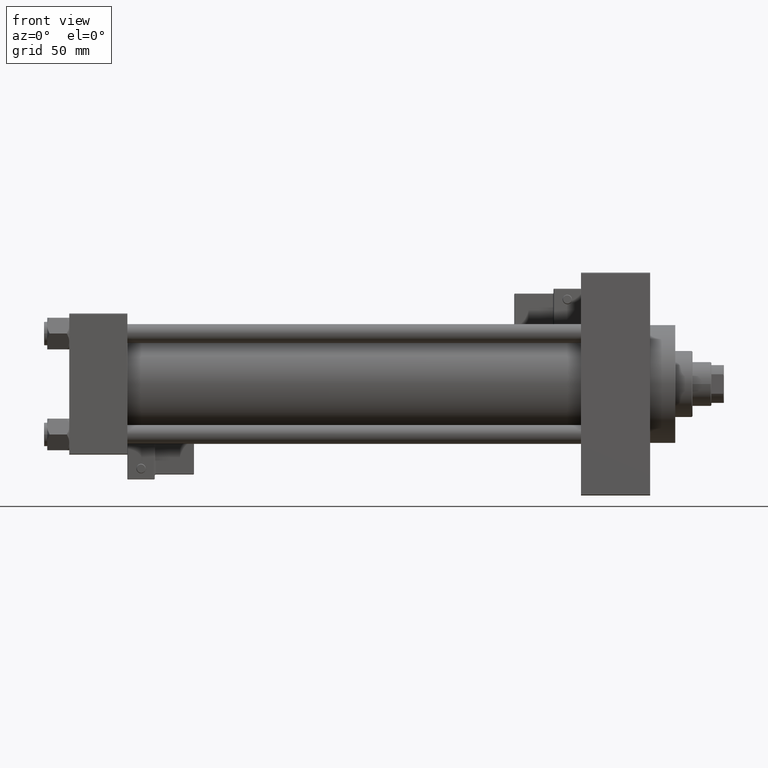
[diagram: clean part render]
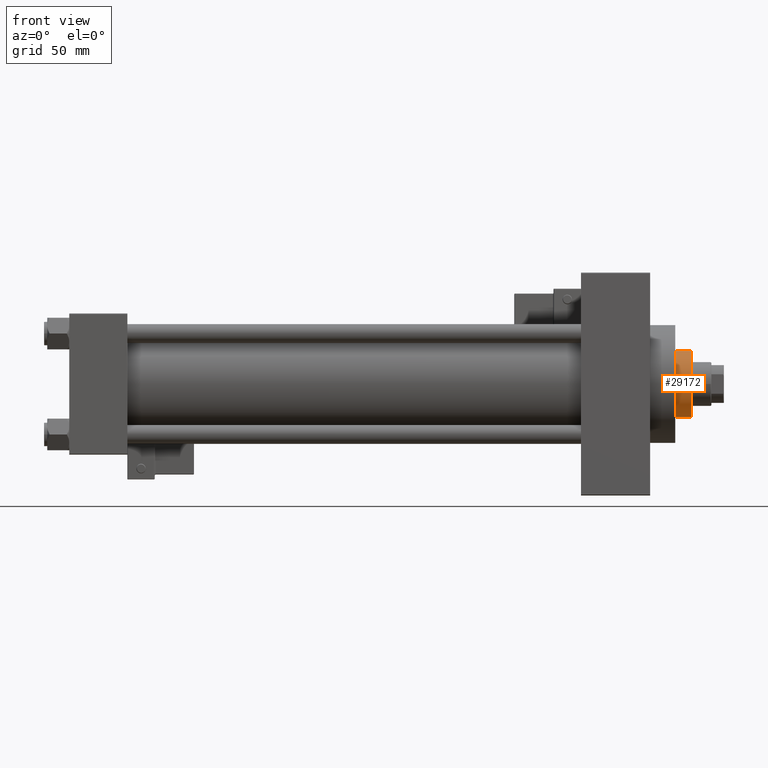
[diagram: same view with one face highlighted and labeled with its STEP entity id]
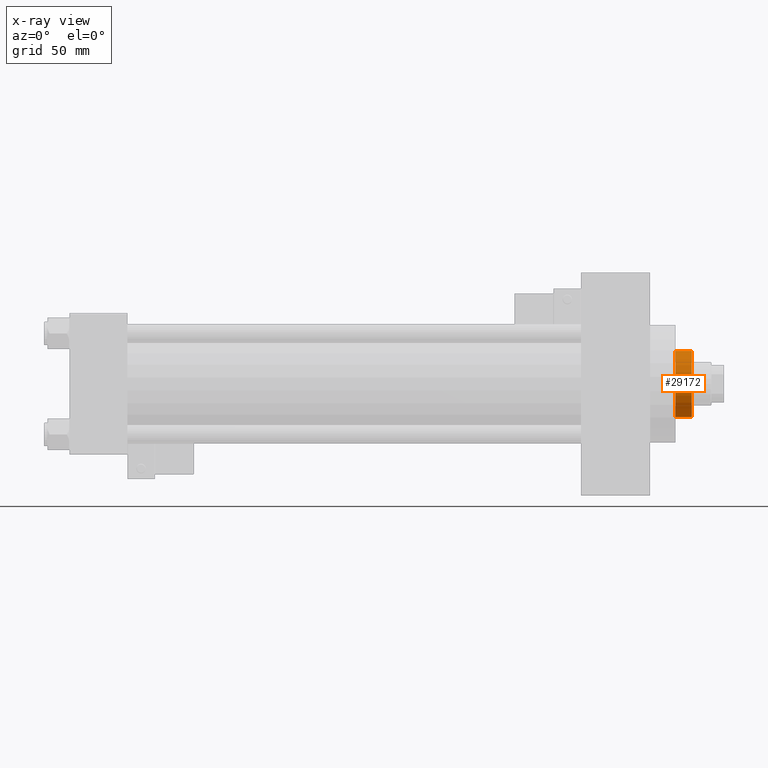
[diagram: x-ray of the same camera — body ghosted, the highlighted face saturated]
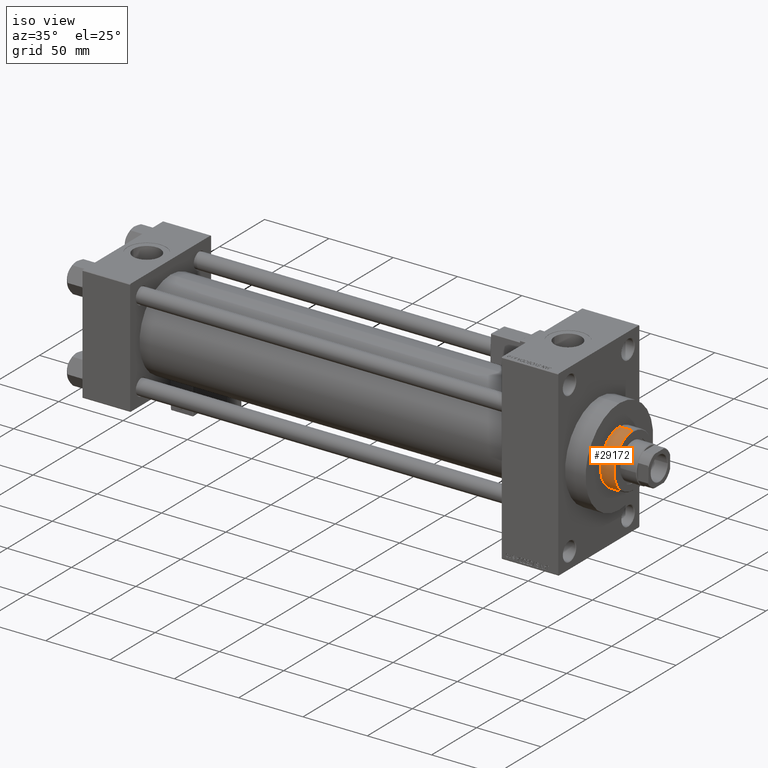
[diagram: same view with one face highlighted and labeled with its STEP entity id]
A machine part, front view. The second image highlights one B-rep face of the part: STEP entity #29172.
The next image is the same camera in x-ray: the body ghosted, the highlighted face saturated — about 0% of this face is hidden behind the body in this view.
A second angle (iso view) of the same face is appended — the face is thin or edge-on in the first view.
In plain terms, the highlighted cylindrical surface (edge-blend (fillet) strip) has radius 21 mm, axis along (-1, 0, 0).
Its self-contained STEP definition (entity closure, byte-faithful):
#538 = CIRCLE ( 'NONE', #49593, 21.00000000000000000 ) ;
#1765 = EDGE_LOOP ( 'NONE', ( #44518, #2024, #40823, #38829 ) ) ;
#2024 = ORIENTED_EDGE ( 'NONE', *, *, #38580, .T. ) ;
#3670 = EDGE_CURVE ( 'NONE', #4179, #49297, #538, .T. ) ;
#4179 = VERTEX_POINT ( 'NONE', #18144 ) ;
#4488 = DIRECTION ( 'NONE',  ( 0.000000000000000000, 0.000000000000000000, 1.000000000000000000 ) ) ;
#4741 = DIRECTION ( 'NONE',  ( 1.000000000000000000, 0.000000000000000000, 0.000000000000000000 ) ) ;
#5522 = CARTESIAN_POINT ( 'NONE',  ( 21.00000000000000000, 2.571758278209441661E-15, 43.25999999999999801 ) ) ;
#6571 = CYLINDRICAL_SURFACE ( 'NONE', #47592, 21.00000000000000000 ) ;
#7122 = DIRECTION ( 'NONE',  ( 1.000000000000000000, 0.000000000000000000, 0.000000000000000000 ) ) ;
#8285 = VERTEX_POINT ( 'NONE', #36612 ) ;
#9699 = DIRECTION ( 'NONE',  ( -1.000000000000000000, 0.000000000000000000, 0.000000000000000000 ) ) ;
#10414 = VERTEX_POINT ( 'NONE', #5522 ) ;
#10478 = DIRECTION ( 'NONE',  ( -0.000000000000000000, -0.000000000000000000, -1.000000000000000000 ) ) ;
#10737 = CARTESIAN_POINT ( 'NONE',  ( 0.000000000000000000, 0.000000000000000000, 54.26000000000000512 ) ) ;
#10764 = CARTESIAN_POINT ( 'NONE',  ( 0.000000000000000000, 0.000000000000000000, 53.76000000000001933 ) ) ;
#12306 = CIRCLE ( 'NONE', #25595, 21.00000000000000000 ) ;
#12659 = LINE ( 'NONE', #40777, #22029 ) ;
#12713 = EDGE_CURVE ( 'NONE', #4179, #8285, #12659, .T. ) ;
#14135 = FACE_OUTER_BOUND ( 'NONE', #1765, .T. ) ;
#18144 = CARTESIAN_POINT ( 'NONE',  ( -21.00000000000000000, 0.000000000000000000, 53.76000000000001933 ) ) ;
#22029 = VECTOR ( 'NONE', #24390, 1000.000000000000000 ) ;
#22394 = LINE ( 'NONE', #43187, #49196 ) ;
#23042 = EDGE_CURVE ( 'NONE', #10414, #8285, #12306, .T. ) ;
#24390 = DIRECTION ( 'NONE',  ( -0.000000000000000000, -0.000000000000000000, -1.000000000000000000 ) ) ;
#25595 = AXIS2_PLACEMENT_3D ( 'NONE', #35997, #4488, #4741 ) ;
#27293 = CARTESIAN_POINT ( 'NONE',  ( 21.00000000000000000, 2.571758278209441661E-15, 53.76000000000001933 ) ) ;
#29172 = ADVANCED_FACE ( 'NONE', ( #14135 ), #6571, .T. ) ;
#30829 = DIRECTION ( 'NONE',  ( 0.000000000000000000, 0.000000000000000000, -1.000000000000000000 ) ) ;
#31242 = DIRECTION ( 'NONE',  ( -0.000000000000000000, -0.000000000000000000, -1.000000000000000000 ) ) ;
#35997 = CARTESIAN_POINT ( 'NONE',  ( 0.000000000000000000, 0.000000000000000000, 43.25999999999999801 ) ) ;
#36612 = CARTESIAN_POINT ( 'NONE',  ( -21.00000000000000000, 0.000000000000000000, 43.25999999999999801 ) ) ;
#38580 = EDGE_CURVE ( 'NONE', #49297, #10414, #22394, .T. ) ;
#38829 = ORIENTED_EDGE ( 'NONE', *, *, #12713, .F. ) ;
#40777 = CARTESIAN_POINT ( 'NONE',  ( -21.00000000000000000, 0.000000000000000000, 54.26000000000000512 ) ) ;
#40823 = ORIENTED_EDGE ( 'NONE', *, *, #23042, .T. ) ;
#43187 = CARTESIAN_POINT ( 'NONE',  ( 21.00000000000000000, 2.571758278209441661E-15, 54.26000000000000512 ) ) ;
#44518 = ORIENTED_EDGE ( 'NONE', *, *, #3670, .T. ) ;
#47592 = AXIS2_PLACEMENT_3D ( 'NONE', #10737, #10478, #9699 ) ;
#49196 = VECTOR ( 'NONE', #31242, 1000.000000000000000 ) ;
#49297 = VERTEX_POINT ( 'NONE', #27293 ) ;
#49593 = AXIS2_PLACEMENT_3D ( 'NONE', #10764, #30829, #7122 ) ;